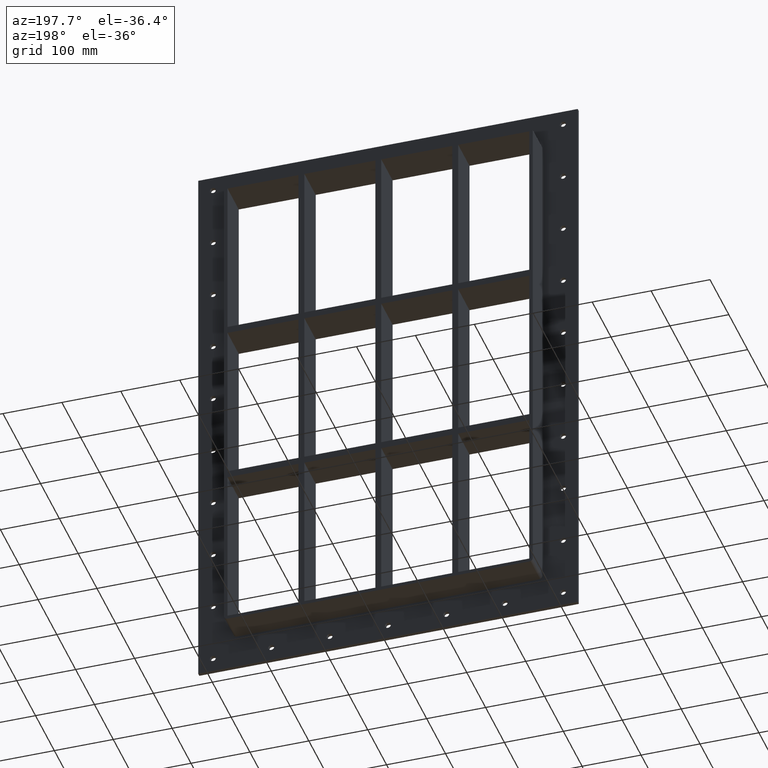
[diagram: clean part render]
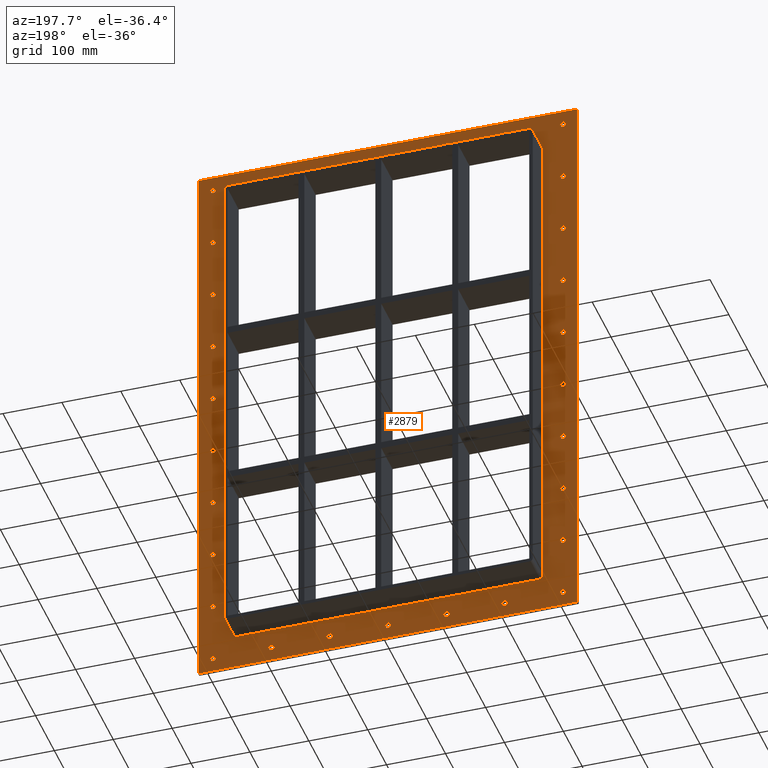
[diagram: same view with one face highlighted and labeled with its STEP entity id]
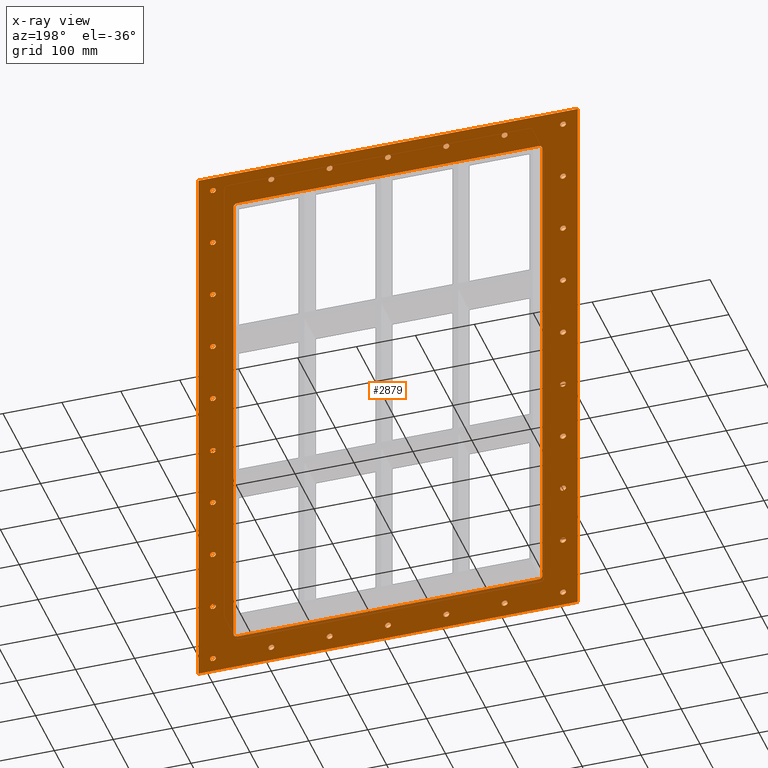
[diagram: x-ray of the same camera — body ghosted, the highlighted face saturated]
A machine part, auxiliary view. The second image highlights one B-rep face of the part: STEP entity #2879.
The next image is the same camera in x-ray: the body ghosted, the highlighted face saturated — about 0% of this face is hidden behind the body in this view.
In plain terms, the highlighted planar face has unit normal (0, 1, 0).
Its self-contained STEP definition (entity closure, byte-faithful):
#73=CARTESIAN_POINT('',(-302.00000000000011,5.999999999999943,-469.99999999999994));
#74=VERTEX_POINT('',#73);
#75=CARTESIAN_POINT('',(-297.00000000000011,5.999999999999943,-469.99999999999994));
#76=DIRECTION('',(0.0,-1.0,0.0));
#77=DIRECTION('',(1.0,0.0,0.0));
#78=AXIS2_PLACEMENT_3D('',#75,#76,#77);
#79=CIRCLE('',#78,5.0);
#80=EDGE_CURVE('',#74,#74,#79,.T.);
#101=CARTESIAN_POINT('',(291.99999999999994,5.999999999999943,-365.55999999999989));
#102=VERTEX_POINT('',#101);
#103=CARTESIAN_POINT('',(296.99999999999994,5.999999999999943,-365.55999999999989));
#104=DIRECTION('',(0.0,-1.0,0.0));
#105=DIRECTION('',(1.0,0.0,0.0));
#106=AXIS2_PLACEMENT_3D('',#103,#104,#105);
#107=CIRCLE('',#106,5.0);
#108=EDGE_CURVE('',#102,#102,#107,.T.);
#129=CARTESIAN_POINT('',(-302.00000000000011,5.999999999999943,-365.55999999999989));
#130=VERTEX_POINT('',#129);
#131=CARTESIAN_POINT('',(-297.00000000000011,5.999999999999943,-365.55999999999989));
#132=DIRECTION('',(0.0,-1.0,0.0));
#133=DIRECTION('',(1.0,0.0,0.0));
#134=AXIS2_PLACEMENT_3D('',#131,#132,#133);
#135=CIRCLE('',#134,5.0);
#136=EDGE_CURVE('',#130,#130,#135,.T.);
#157=CARTESIAN_POINT('',(291.99999999999994,5.999999999999943,-261.11999999999989));
#158=VERTEX_POINT('',#157);
#159=CARTESIAN_POINT('',(296.99999999999994,5.999999999999943,-261.11999999999989));
#160=DIRECTION('',(0.0,-1.0,0.0));
#161=DIRECTION('',(1.0,0.0,0.0));
#162=AXIS2_PLACEMENT_3D('',#159,#160,#161);
#163=CIRCLE('',#162,5.0);
#164=EDGE_CURVE('',#158,#158,#163,.T.);
#185=CARTESIAN_POINT('',(-302.00000000000011,5.999999999999943,-261.11999999999989));
#186=VERTEX_POINT('',#185);
#187=CARTESIAN_POINT('',(-297.00000000000011,5.999999999999943,-261.11999999999989));
#188=DIRECTION('',(0.0,-1.0,0.0));
#189=DIRECTION('',(1.0,0.0,0.0));
#190=AXIS2_PLACEMENT_3D('',#187,#188,#189);
#191=CIRCLE('',#190,5.0);
#192=EDGE_CURVE('',#186,#186,#191,.T.);
#213=CARTESIAN_POINT('',(291.99999999999994,5.999999999999943,-156.67999999999984));
#214=VERTEX_POINT('',#213);
#215=CARTESIAN_POINT('',(296.99999999999994,5.999999999999943,-156.67999999999984));
#216=DIRECTION('',(0.0,-1.0,0.0));
#217=DIRECTION('',(1.0,0.0,0.0));
#218=AXIS2_PLACEMENT_3D('',#215,#216,#217);
#219=CIRCLE('',#218,5.0);
#220=EDGE_CURVE('',#214,#214,#219,.T.);
#241=CARTESIAN_POINT('',(-302.00000000000011,5.999999999999943,-156.67999999999984));
#242=VERTEX_POINT('',#241);
#243=CARTESIAN_POINT('',(-297.00000000000011,5.999999999999943,-156.67999999999984));
#244=DIRECTION('',(0.0,-1.0,0.0));
#245=DIRECTION('',(1.0,0.0,0.0));
#246=AXIS2_PLACEMENT_3D('',#243,#244,#245);
#247=CIRCLE('',#246,5.0);
#248=EDGE_CURVE('',#242,#242,#247,.T.);
#269=CARTESIAN_POINT('',(291.99999999999994,5.999999999999943,-52.239999999999881));
#270=VERTEX_POINT('',#269);
#271=CARTESIAN_POINT('',(296.99999999999994,5.999999999999943,-52.239999999999881));
#272=DIRECTION('',(0.0,-1.0,0.0));
#273=DIRECTION('',(1.0,0.0,0.0));
#274=AXIS2_PLACEMENT_3D('',#271,#272,#273);
#275=CIRCLE('',#274,5.0);
#276=EDGE_CURVE('',#270,#270,#275,.T.);
#297=CARTESIAN_POINT('',(-302.00000000000011,5.999999999999943,-52.239999999999881));
#298=VERTEX_POINT('',#297);
#299=CARTESIAN_POINT('',(-297.00000000000011,5.999999999999943,-52.239999999999881));
#300=DIRECTION('',(0.0,-1.0,0.0));
#301=DIRECTION('',(1.0,0.0,0.0));
#302=AXIS2_PLACEMENT_3D('',#299,#300,#301);
#303=CIRCLE('',#302,5.0);
#304=EDGE_CURVE('',#298,#298,#303,.T.);
#325=CARTESIAN_POINT('',(291.99999999999994,5.999999999999943,52.200000000000145));
#326=VERTEX_POINT('',#325);
#327=CARTESIAN_POINT('',(296.99999999999994,5.999999999999943,52.200000000000145));
#328=DIRECTION('',(0.0,-1.0,0.0));
#329=DIRECTION('',(1.0,0.0,0.0));
#330=AXIS2_PLACEMENT_3D('',#327,#328,#329);
#331=CIRCLE('',#330,5.0);
#332=EDGE_CURVE('',#326,#326,#331,.T.);
#353=CARTESIAN_POINT('',(-302.00000000000011,5.999999999999943,52.200000000000145));
#354=VERTEX_POINT('',#353);
#355=CARTESIAN_POINT('',(-297.00000000000011,5.999999999999943,52.200000000000145));
#356=DIRECTION('',(0.0,-1.0,0.0));
#357=DIRECTION('',(1.0,0.0,0.0));
#358=AXIS2_PLACEMENT_3D('',#355,#356,#357);
#359=CIRCLE('',#358,5.0);
#360=EDGE_CURVE('',#354,#354,#359,.T.);
#381=CARTESIAN_POINT('',(291.99999999999994,5.999999999999943,156.64000000000019));
#382=VERTEX_POINT('',#381);
#383=CARTESIAN_POINT('',(296.99999999999994,5.999999999999943,156.64000000000019));
#384=DIRECTION('',(0.0,-1.0,0.0));
#385=DIRECTION('',(1.0,0.0,0.0));
#386=AXIS2_PLACEMENT_3D('',#383,#384,#385);
#387=CIRCLE('',#386,5.0);
#388=EDGE_CURVE('',#382,#382,#387,.T.);
#409=CARTESIAN_POINT('',(-302.00000000000011,5.999999999999943,156.64000000000019));
#410=VERTEX_POINT('',#409);
#411=CARTESIAN_POINT('',(-297.00000000000011,5.999999999999943,156.64000000000019));
#412=DIRECTION('',(0.0,-1.0,0.0));
#413=DIRECTION('',(1.0,0.0,0.0));
#414=AXIS2_PLACEMENT_3D('',#411,#412,#413);
#415=CIRCLE('',#414,5.0);
#416=EDGE_CURVE('',#410,#410,#415,.T.);
#437=CARTESIAN_POINT('',(291.99999999999994,5.999999999999943,261.0800000000001));
#438=VERTEX_POINT('',#437);
#439=CARTESIAN_POINT('',(296.99999999999994,5.999999999999943,261.0800000000001));
#440=DIRECTION('',(0.0,-1.0,0.0));
#441=DIRECTION('',(1.0,0.0,0.0));
#442=AXIS2_PLACEMENT_3D('',#439,#440,#441);
#443=CIRCLE('',#442,5.0);
#444=EDGE_CURVE('',#438,#438,#443,.T.);
#465=CARTESIAN_POINT('',(-302.00000000000011,5.999999999999943,261.0800000000001));
#466=VERTEX_POINT('',#465);
#467=CARTESIAN_POINT('',(-297.00000000000011,5.999999999999943,261.0800000000001));
#468=DIRECTION('',(0.0,-1.0,0.0));
#469=DIRECTION('',(1.0,0.0,0.0));
#470=AXIS2_PLACEMENT_3D('',#467,#468,#469);
#471=CIRCLE('',#470,5.0);
#472=EDGE_CURVE('',#466,#466,#471,.T.);
#493=CARTESIAN_POINT('',(291.99999999999994,5.999999999999943,365.52000000000015));
#494=VERTEX_POINT('',#493);
#495=CARTESIAN_POINT('',(296.99999999999994,5.999999999999943,365.52000000000015));
#496=DIRECTION('',(0.0,-1.0,0.0));
#497=DIRECTION('',(1.0,0.0,0.0));
#498=AXIS2_PLACEMENT_3D('',#495,#496,#497);
#499=CIRCLE('',#498,5.0);
#500=EDGE_CURVE('',#494,#494,#499,.T.);
#521=CARTESIAN_POINT('',(-302.00000000000011,5.999999999999943,365.52000000000015));
#522=VERTEX_POINT('',#521);
#523=CARTESIAN_POINT('',(-297.00000000000011,5.999999999999943,365.52000000000015));
#524=DIRECTION('',(0.0,-1.0,0.0));
#525=DIRECTION('',(1.0,0.0,0.0));
#526=AXIS2_PLACEMENT_3D('',#523,#524,#525);
#527=CIRCLE('',#526,5.0);
#528=EDGE_CURVE('',#522,#522,#527,.T.);
#549=CARTESIAN_POINT('',(-203.00000000000011,5.999999999999943,469.96000000000015));
#550=VERTEX_POINT('',#549);
#551=CARTESIAN_POINT('',(-198.00000000000011,5.999999999999943,469.96000000000015));
#552=DIRECTION('',(0.0,-1.0,0.0));
#553=DIRECTION('',(1.0,0.0,0.0));
#554=AXIS2_PLACEMENT_3D('',#551,#552,#553);
#555=CIRCLE('',#554,5.0);
#556=EDGE_CURVE('',#550,#550,#555,.T.);
#577=CARTESIAN_POINT('',(-203.00000000000011,5.999999999999943,-469.99999999999994));
#578=VERTEX_POINT('',#577);
#579=CARTESIAN_POINT('',(-198.00000000000011,5.999999999999943,-469.99999999999994));
#580=DIRECTION('',(0.0,-1.0,0.0));
#581=DIRECTION('',(1.0,0.0,0.0));
#582=AXIS2_PLACEMENT_3D('',#579,#580,#581);
#583=CIRCLE('',#582,5.0);
#584=EDGE_CURVE('',#578,#578,#583,.T.);
#605=CARTESIAN_POINT('',(-104.00000000000011,5.999999999999943,469.96000000000015));
#606=VERTEX_POINT('',#605);
#607=CARTESIAN_POINT('',(-99.000000000000114,5.999999999999943,469.96000000000015));
#608=DIRECTION('',(0.0,-1.0,0.0));
#609=DIRECTION('',(1.0,0.0,0.0));
#610=AXIS2_PLACEMENT_3D('',#607,#608,#609);
#611=CIRCLE('',#610,5.0);
#612=EDGE_CURVE('',#606,#606,#611,.T.);
#633=CARTESIAN_POINT('',(-104.00000000000011,5.999999999999943,-469.99999999999994));
#634=VERTEX_POINT('',#633);
#635=CARTESIAN_POINT('',(-99.000000000000114,5.999999999999943,-469.99999999999994));
#636=DIRECTION('',(0.0,-1.0,0.0));
#637=DIRECTION('',(1.0,0.0,0.0));
#638=AXIS2_PLACEMENT_3D('',#635,#636,#637);
#639=CIRCLE('',#638,5.0);
#640=EDGE_CURVE('',#634,#634,#639,.T.);
#661=CARTESIAN_POINT('',(-5.000000000000124,5.999999999999943,469.96000000000015));
#662=VERTEX_POINT('',#661);
#663=CARTESIAN_POINT('',(-1.243450E-013,5.999999999999943,469.96000000000015));
#664=DIRECTION('',(0.0,-1.0,0.0));
#665=DIRECTION('',(1.0,0.0,0.0));
#666=AXIS2_PLACEMENT_3D('',#663,#664,#665);
#667=CIRCLE('',#666,5.0);
#668=EDGE_CURVE('',#662,#662,#667,.T.);
#689=CARTESIAN_POINT('',(-5.000000000000124,5.999999999999943,-469.99999999999994));
#690=VERTEX_POINT('',#689);
#691=CARTESIAN_POINT('',(-1.243450E-013,5.999999999999943,-469.99999999999994));
#692=DIRECTION('',(0.0,-1.0,0.0));
#693=DIRECTION('',(1.0,0.0,0.0));
#694=AXIS2_PLACEMENT_3D('',#691,#692,#693);
#695=CIRCLE('',#694,5.0);
#696=EDGE_CURVE('',#690,#690,#695,.T.);
#717=CARTESIAN_POINT('',(93.999999999999901,5.999999999999943,469.96000000000015));
#718=VERTEX_POINT('',#717);
#719=CARTESIAN_POINT('',(98.999999999999901,5.999999999999943,469.96000000000015));
#720=DIRECTION('',(0.0,-1.0,0.0));
#721=DIRECTION('',(1.0,0.0,0.0));
#722=AXIS2_PLACEMENT_3D('',#719,#720,#721);
#723=CIRCLE('',#722,5.0);
#724=EDGE_CURVE('',#718,#718,#723,.T.);
#745=CARTESIAN_POINT('',(93.999999999999901,5.999999999999943,-469.99999999999994));
#746=VERTEX_POINT('',#745);
#747=CARTESIAN_POINT('',(98.999999999999901,5.999999999999943,-469.99999999999994));
#748=DIRECTION('',(0.0,-1.0,0.0));
#749=DIRECTION('',(1.0,0.0,0.0));
#750=AXIS2_PLACEMENT_3D('',#747,#748,#749);
#751=CIRCLE('',#750,5.0);
#752=EDGE_CURVE('',#746,#746,#751,.T.);
#773=CARTESIAN_POINT('',(192.99999999999989,5.999999999999943,469.96000000000015));
#774=VERTEX_POINT('',#773);
#775=CARTESIAN_POINT('',(197.99999999999989,5.999999999999943,469.96000000000015));
#776=DIRECTION('',(0.0,-1.0,0.0));
#777=DIRECTION('',(1.0,0.0,0.0));
#778=AXIS2_PLACEMENT_3D('',#775,#776,#777);
#779=CIRCLE('',#778,5.0);
#780=EDGE_CURVE('',#774,#774,#779,.T.);
#801=CARTESIAN_POINT('',(192.99999999999989,5.999999999999943,-469.99999999999994));
#802=VERTEX_POINT('',#801);
#803=CARTESIAN_POINT('',(197.99999999999989,5.999999999999943,-469.99999999999994));
#804=DIRECTION('',(0.0,-1.0,0.0));
#805=DIRECTION('',(1.0,0.0,0.0));
#806=AXIS2_PLACEMENT_3D('',#803,#804,#805);
#807=CIRCLE('',#806,5.0);
#808=EDGE_CURVE('',#802,#802,#807,.T.);
#829=CARTESIAN_POINT('',(291.99999999999994,5.999999999999943,-469.99999999999994));
#830=VERTEX_POINT('',#829);
#831=CARTESIAN_POINT('',(296.99999999999994,5.999999999999943,-469.99999999999994));
#832=DIRECTION('',(0.0,-1.0,0.0));
#833=DIRECTION('',(1.0,0.0,0.0));
#834=AXIS2_PLACEMENT_3D('',#831,#832,#833);
#835=CIRCLE('',#834,5.0);
#836=EDGE_CURVE('',#830,#830,#835,.T.);
#857=CARTESIAN_POINT('',(-302.00000000000011,5.999999999999943,469.96000000000015));
#858=VERTEX_POINT('',#857);
#859=CARTESIAN_POINT('',(-297.00000000000011,5.999999999999943,469.96000000000015));
#860=DIRECTION('',(0.0,-1.0,0.0));
#861=DIRECTION('',(1.0,0.0,0.0));
#862=AXIS2_PLACEMENT_3D('',#859,#860,#861);
#863=CIRCLE('',#862,5.0);
#864=EDGE_CURVE('',#858,#858,#863,.T.);
#885=CARTESIAN_POINT('',(291.99999999999994,5.999999999999943,469.96000000000015));
#886=VERTEX_POINT('',#885);
#887=CARTESIAN_POINT('',(296.99999999999994,5.999999999999943,469.96000000000015));
#888=DIRECTION('',(0.0,-1.0,0.0));
#889=DIRECTION('',(1.0,0.0,0.0));
#890=AXIS2_PLACEMENT_3D('',#887,#888,#889);
#891=CIRCLE('',#890,5.0);
#892=EDGE_CURVE('',#886,#886,#891,.T.);
#2680=CARTESIAN_POINT('',(0.0,6.000000000000001,8.414322E-014));
#2681=DIRECTION('',(0.0,1.0,0.0));
#2682=DIRECTION('',(0.0,0.0,1.0));
#2683=AXIS2_PLACEMENT_3D('',#2680,#2681,#2682);
#2684=PLANE('',#2683);
#2685=CARTESIAN_POINT('',(-322.00000000000011,6.000000000000001,495.00000000000006));
#2686=VERTEX_POINT('',#2685);
#2687=CARTESIAN_POINT('',(322.00000000000011,6.000000000000001,495.00000000000006));
#2688=VERTEX_POINT('',#2687);
#2689=CARTESIAN_POINT('',(-322.00000000000011,6.000000000000001,495.00000000000006));
#2690=DIRECTION('',(1.0,0.0,0.0));
#2691=VECTOR('',#2690,644.00000000000023);
#2692=LINE('',#2689,#2691);
#2693=EDGE_CURVE('',#2686,#2688,#2692,.T.);
#2694=ORIENTED_EDGE('',*,*,#2693,.T.);
#2695=CARTESIAN_POINT('',(322.00000000000011,6.000000000000001,-494.99999999999994));
#2696=VERTEX_POINT('',#2695);
#2697=CARTESIAN_POINT('',(322.00000000000011,6.000000000000001,495.00000000000006));
#2698=DIRECTION('',(0.0,0.0,-1.0));
#2699=VECTOR('',#2698,990.0);
#2700=LINE('',#2697,#2699);
#2701=EDGE_CURVE('',#2688,#2696,#2700,.T.);
#2702=ORIENTED_EDGE('',*,*,#2701,.T.);
#2703=CARTESIAN_POINT('',(-322.00000000000011,6.000000000000001,-494.99999999999994));
#2704=VERTEX_POINT('',#2703);
#2705=CARTESIAN_POINT('',(322.00000000000011,6.000000000000001,-494.99999999999994));
#2706=DIRECTION('',(-1.0,0.0,0.0));
#2707=VECTOR('',#2706,644.00000000000023);
#2708=LINE('',#2705,#2707);
#2709=EDGE_CURVE('',#2696,#2704,#2708,.T.);
#2710=ORIENTED_EDGE('',*,*,#2709,.T.);
#2711=CARTESIAN_POINT('',(-322.00000000000011,6.000000000000001,-494.99999999999994));
#2712=DIRECTION('',(0.0,0.0,1.0));
#2713=VECTOR('',#2712,990.0);
#2714=LINE('',#2711,#2713);
#2715=EDGE_CURVE('',#2704,#2686,#2714,.T.);
#2716=ORIENTED_EDGE('',*,*,#2715,.T.);
#2717=EDGE_LOOP('',(#2694,#2702,#2710,#2716));
#2718=FACE_OUTER_BOUND('',#2717,.T.);
#2719=ORIENTED_EDGE('',*,*,#80,.T.);
#2720=EDGE_LOOP('',(#2719));
#2721=FACE_BOUND('',#2720,.T.);
#2722=ORIENTED_EDGE('',*,*,#108,.T.);
#2723=EDGE_LOOP('',(#2722));
#2724=FACE_BOUND('',#2723,.T.);
#2725=ORIENTED_EDGE('',*,*,#136,.T.);
#2726=EDGE_LOOP('',(#2725));
#2727=FACE_BOUND('',#2726,.T.);
#2728=ORIENTED_EDGE('',*,*,#164,.T.);
#2729=EDGE_LOOP('',(#2728));
#2730=FACE_BOUND('',#2729,.T.);
#2731=ORIENTED_EDGE('',*,*,#192,.T.);
#2732=EDGE_LOOP('',(#2731));
#2733=FACE_BOUND('',#2732,.T.);
#2734=ORIENTED_EDGE('',*,*,#220,.T.);
#2735=EDGE_LOOP('',(#2734));
#2736=FACE_BOUND('',#2735,.T.);
#2737=ORIENTED_EDGE('',*,*,#248,.T.);
#2738=EDGE_LOOP('',(#2737));
#2739=FACE_BOUND('',#2738,.T.);
#2740=ORIENTED_EDGE('',*,*,#276,.T.);
#2741=EDGE_LOOP('',(#2740));
#2742=FACE_BOUND('',#2741,.T.);
#2743=ORIENTED_EDGE('',*,*,#304,.T.);
#2744=EDGE_LOOP('',(#2743));
#2745=FACE_BOUND('',#2744,.T.);
#2746=ORIENTED_EDGE('',*,*,#332,.T.);
#2747=EDGE_LOOP('',(#2746));
#2748=FACE_BOUND('',#2747,.T.);
#2749=ORIENTED_EDGE('',*,*,#360,.T.);
#2750=EDGE_LOOP('',(#2749));
#2751=FACE_BOUND('',#2750,.T.);
#2752=ORIENTED_EDGE('',*,*,#388,.T.);
#2753=EDGE_LOOP('',(#2752));
#2754=FACE_BOUND('',#2753,.T.);
#2755=ORIENTED_EDGE('',*,*,#416,.T.);
#2756=EDGE_LOOP('',(#2755));
#2757=FACE_BOUND('',#2756,.T.);
#2758=ORIENTED_EDGE('',*,*,#444,.T.);
#2759=EDGE_LOOP('',(#2758));
#2760=FACE_BOUND('',#2759,.T.);
#2761=ORIENTED_EDGE('',*,*,#472,.T.);
#2762=EDGE_LOOP('',(#2761));
#2763=FACE_BOUND('',#2762,.T.);
#2764=ORIENTED_EDGE('',*,*,#500,.T.);
#2765=EDGE_LOOP('',(#2764));
#2766=FACE_BOUND('',#2765,.T.);
#2767=ORIENTED_EDGE('',*,*,#528,.T.);
#2768=EDGE_LOOP('',(#2767));
#2769=FACE_BOUND('',#2768,.T.);
#2770=ORIENTED_EDGE('',*,*,#556,.T.);
#2771=EDGE_LOOP('',(#2770));
#2772=FACE_BOUND('',#2771,.T.);
#2773=ORIENTED_EDGE('',*,*,#584,.T.);
#2774=EDGE_LOOP('',(#2773));
#2775=FACE_BOUND('',#2774,.T.);
#2776=ORIENTED_EDGE('',*,*,#612,.T.);
#2777=EDGE_LOOP('',(#2776));
#2778=FACE_BOUND('',#2777,.T.);
#2779=ORIENTED_EDGE('',*,*,#640,.T.);
#2780=EDGE_LOOP('',(#2779));
#2781=FACE_BOUND('',#2780,.T.);
#2782=ORIENTED_EDGE('',*,*,#668,.T.);
#2783=EDGE_LOOP('',(#2782));
#2784=FACE_BOUND('',#2783,.T.);
#2785=ORIENTED_EDGE('',*,*,#696,.T.);
#2786=EDGE_LOOP('',(#2785));
#2787=FACE_BOUND('',#2786,.T.);
#2788=ORIENTED_EDGE('',*,*,#724,.T.);
#2789=EDGE_LOOP('',(#2788));
#2790=FACE_BOUND('',#2789,.T.);
#2791=ORIENTED_EDGE('',*,*,#752,.T.);
#2792=EDGE_LOOP('',(#2791));
#2793=FACE_BOUND('',#2792,.T.);
#2794=ORIENTED_EDGE('',*,*,#780,.T.);
#2795=EDGE_LOOP('',(#2794));
#2796=FACE_BOUND('',#2795,.T.);
#2797=ORIENTED_EDGE('',*,*,#808,.T.);
#2798=EDGE_LOOP('',(#2797));
#2799=FACE_BOUND('',#2798,.T.);
#2800=ORIENTED_EDGE('',*,*,#836,.T.);
#2801=EDGE_LOOP('',(#2800));
#2802=FACE_BOUND('',#2801,.T.);
#2803=ORIENTED_EDGE('',*,*,#864,.T.);
#2804=EDGE_LOOP('',(#2803));
#2805=FACE_BOUND('',#2804,.T.);
#2806=ORIENTED_EDGE('',*,*,#892,.T.);
#2807=EDGE_LOOP('',(#2806));
#2808=FACE_BOUND('',#2807,.T.);
#2809=CARTESIAN_POINT('',(-256.00000000000006,6.000000000000001,-435.00000000000011));
#2810=VERTEX_POINT('',#2809);
#2811=CARTESIAN_POINT('',(-262.00000000000006,6.000000000000001,-429.00000000000023));
#2812=VERTEX_POINT('',#2811);
#2813=CARTESIAN_POINT('',(-256.00000000000006,6.000000000000001,-429.00000000000023));
#2814=DIRECTION('',(0.0,1.0,0.0));
#2815=DIRECTION('',(-0.707106781186552,0.0,-0.707106781186543));
#2816=AXIS2_PLACEMENT_3D('',#2813,#2814,#2815);
#2817=CIRCLE('',#2816,6.000000000000001);
#2818=EDGE_CURVE('',#2810,#2812,#2817,.T.);
#2819=ORIENTED_EDGE('',*,*,#2818,.F.);
#2820=CARTESIAN_POINT('',(256.0,6.000000000000001,-435.00000000000011));
#2821=VERTEX_POINT('',#2820);
#2822=CARTESIAN_POINT('',(256.0,6.000000000000001,-435.00000000000011));
#2823=DIRECTION('',(-1.0,0.0,0.0));
#2824=VECTOR('',#2823,512.0);
#2825=LINE('',#2822,#2824);
#2826=EDGE_CURVE('',#2821,#2810,#2825,.T.);
#2827=ORIENTED_EDGE('',*,*,#2826,.F.);
#2828=CARTESIAN_POINT('',(262.0,6.000000000000001,-429.00000000000006));
#2829=VERTEX_POINT('',#2828);
#2830=CARTESIAN_POINT('',(256.0,6.000000000000001,-429.00000000000006));
#2831=DIRECTION('',(0.0,1.0,0.0));
#2832=DIRECTION('',(0.707106781186543,0.0,-0.707106781186552));
#2833=AXIS2_PLACEMENT_3D('',#2830,#2831,#2832);
#2834=CIRCLE('',#2833,6.0);
#2835=EDGE_CURVE('',#2829,#2821,#2834,.T.);
#2836=ORIENTED_EDGE('',*,*,#2835,.F.);
#2837=CARTESIAN_POINT('',(262.0,6.000000000000001,429.0));
#2838=VERTEX_POINT('',#2837);
#2839=CARTESIAN_POINT('',(262.0,6.000000000000001,429.0));
#2840=DIRECTION('',(0.0,0.0,-1.0));
#2841=VECTOR('',#2840,858.0);
#2842=LINE('',#2839,#2841);
#2843=EDGE_CURVE('',#2838,#2829,#2842,.T.);
#2844=ORIENTED_EDGE('',*,*,#2843,.F.);
#2845=CARTESIAN_POINT('',(256.0,6.000000000000001,435.0));
#2846=VERTEX_POINT('',#2845);
#2847=CARTESIAN_POINT('',(256.0,6.000000000000001,429.0));
#2848=DIRECTION('',(0.0,1.0,0.0));
#2849=DIRECTION('',(0.707106781186543,0.0,0.707106781186552));
#2850=AXIS2_PLACEMENT_3D('',#2847,#2848,#2849);
#2851=CIRCLE('',#2850,6.0);
#2852=EDGE_CURVE('',#2846,#2838,#2851,.T.);
#2853=ORIENTED_EDGE('',*,*,#2852,.F.);
#2854=CARTESIAN_POINT('',(-256.00000000000011,6.000000000000001,435.0));
#2855=VERTEX_POINT('',#2854);
#2856=CARTESIAN_POINT('',(-256.00000000000006,6.000000000000001,435.0));
#2857=DIRECTION('',(1.0,0.0,0.0));
#2858=VECTOR('',#2857,512.0);
#2859=LINE('',#2856,#2858);
#2860=EDGE_CURVE('',#2855,#2846,#2859,.T.);
#2861=ORIENTED_EDGE('',*,*,#2860,.F.);
#2862=CARTESIAN_POINT('',(-262.00000000000006,6.000000000000001,428.99999999999989));
#2863=VERTEX_POINT('',#2862);
#2864=CARTESIAN_POINT('',(-256.00000000000011,6.000000000000001,428.99999999999989));
#2865=DIRECTION('',(0.0,1.0,0.0));
#2866=DIRECTION('',(-0.707106781186539,0.0,0.707106781186556));
#2867=AXIS2_PLACEMENT_3D('',#2864,#2865,#2866);
#2868=CIRCLE('',#2867,6.000000000000001);
#2869=EDGE_CURVE('',#2863,#2855,#2868,.T.);
#2870=ORIENTED_EDGE('',*,*,#2869,.F.);
#2871=CARTESIAN_POINT('',(-262.00000000000006,6.000000000000001,-429.00000000000023));
#2872=DIRECTION('',(0.0,0.0,1.0));
#2873=VECTOR('',#2872,858.00000000000011);
#2874=LINE('',#2871,#2873);
#2875=EDGE_CURVE('',#2812,#2863,#2874,.T.);
#2876=ORIENTED_EDGE('',*,*,#2875,.F.);
#2877=EDGE_LOOP('',(#2819,#2827,#2836,#2844,#2853,#2861,#2870,#2876));
#2878=FACE_BOUND('',#2877,.T.);
#2879=ADVANCED_FACE('',(#2718,#2721,#2724,#2727,#2730,#2733,#2736,#2739,#2742,#2745,#2748,#2751,#2754,#2757,#2760,#2763,#2766,#2769,#2772,#2775,#2778,#2781,#2784,#2787,#2790,#2793,#2796,#2799,#2802,#2805,#2808,#2878),#2684,.T.);